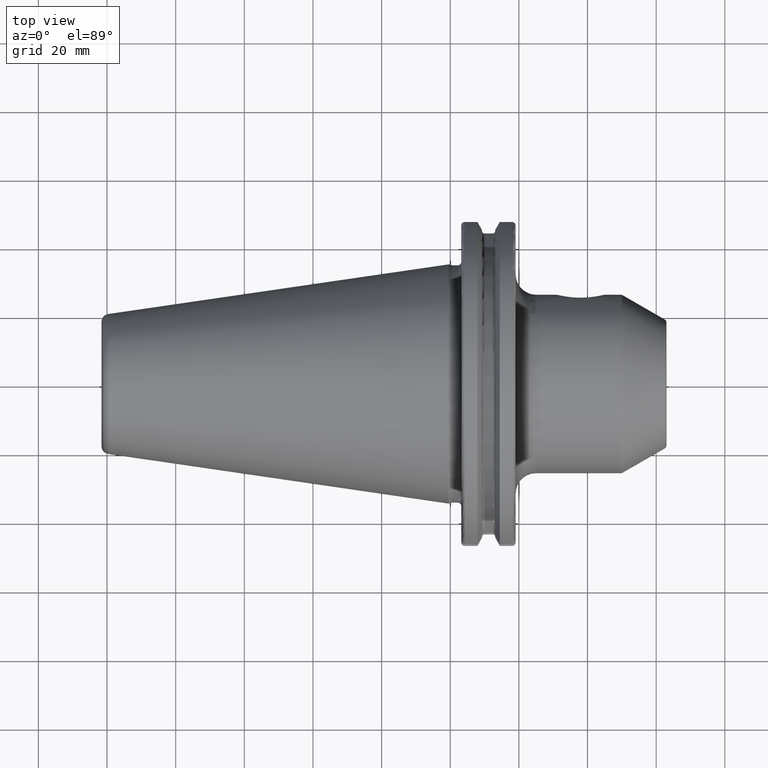
[diagram: clean part render]
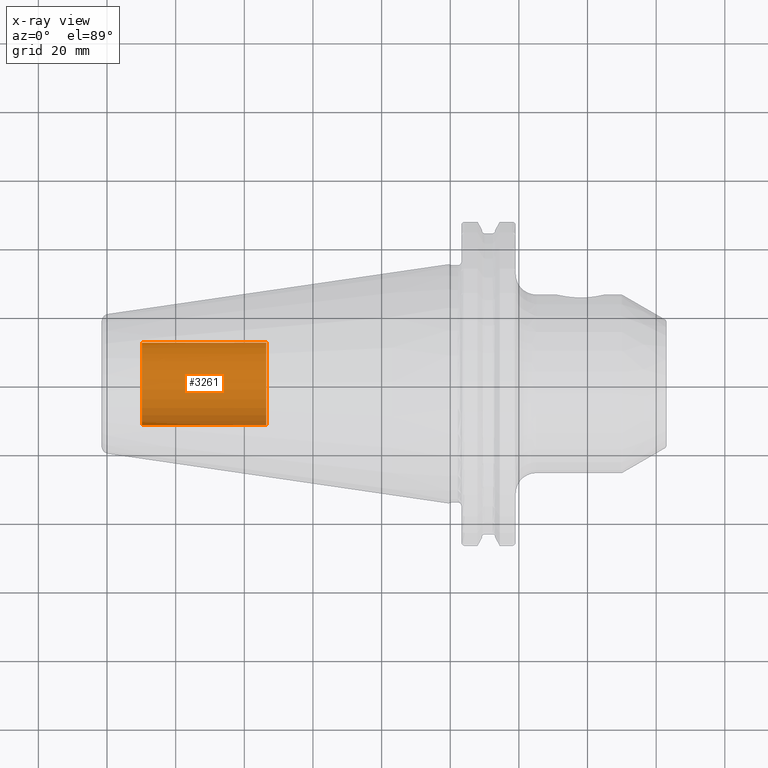
[diagram: x-ray — body ghosted, one internal face saturated and labeled with its STEP entity id]
A machine part, top view, then the same camera in x-ray: the body is ghosted and one INTERNAL B-rep face — a face not visible from any outside direction — is saturated and labeled: STEP entity #3261.
In plain terms, the highlighted cylindrical surface (partial cylindrical patch) has radius 12.0032 mm, axis along (1, 0, 0).
Its self-contained STEP definition (entity closure, byte-faithful):
#3196=CARTESIAN_POINT('',(-8.985E1,0.E0,0.E0));
#3197=DIRECTION('',(-1.E0,0.E0,0.E0));
#3198=DIRECTION('',(0.E0,1.E0,0.E0));
#3199=AXIS2_PLACEMENT_3D('',#3196,#3197,#3198);
#3201=DIRECTION('',(1.E0,0.E0,0.E0));
#3202=VECTOR('',#3201,3.625E1);
#3203=CARTESIAN_POINT('',(-8.985E1,-1.200325E1,0.E0));
#3204=LINE('',#3203,#3202);
#3210=DIRECTION('',(1.E0,0.E0,0.E0));
#3211=VECTOR('',#3210,3.625E1);
#3212=CARTESIAN_POINT('',(-8.985E1,1.200325E1,0.E0));
#3213=LINE('',#3212,#3211);
#3219=CARTESIAN_POINT('',(-5.36E1,0.E0,0.E0));
#3220=DIRECTION('',(1.E0,0.E0,0.E0));
#3221=DIRECTION('',(0.E0,-1.E0,0.E0));
#3222=AXIS2_PLACEMENT_3D('',#3219,#3220,#3221);
#3234=CARTESIAN_POINT('',(-8.985E1,1.200325E1,0.E0));
#3235=CARTESIAN_POINT('',(-8.985E1,-1.200325E1,0.E0));
#3236=VERTEX_POINT('',#3234);
#3237=VERTEX_POINT('',#3235);
#3238=CARTESIAN_POINT('',(-5.36E1,1.200325E1,0.E0));
#3239=CARTESIAN_POINT('',(-5.36E1,-1.200325E1,0.E0));
#3240=VERTEX_POINT('',#3238);
#3241=VERTEX_POINT('',#3239);
#3246=CARTESIAN_POINT('',(-8.985E1,0.E0,0.E0));
#3247=DIRECTION('',(1.E0,0.E0,0.E0));
#3248=DIRECTION('',(0.E0,1.E0,0.E0));
#3249=AXIS2_PLACEMENT_3D('',#3246,#3247,#3248);
#3250=CYLINDRICAL_SURFACE('',#3249,1.200325E1);
#3252=ORIENTED_EDGE('',*,*,#3251,.T.);
#3254=ORIENTED_EDGE('',*,*,#3253,.T.);
#3256=ORIENTED_EDGE('',*,*,#3255,.T.);
#3258=ORIENTED_EDGE('',*,*,#3257,.F.);
#3259=EDGE_LOOP('',(#3252,#3254,#3256,#3258));
#3260=FACE_OUTER_BOUND('',#3259,.F.);
#3261=ADVANCED_FACE('',(#3260),#3250,.T.);
#3200=CIRCLE('',#3199,1.200325E1);
#3223=CIRCLE('',#3222,1.200325E1);
#3251=EDGE_CURVE('',#3236,#3237,#3200,.T.);
#3253=EDGE_CURVE('',#3237,#3241,#3204,.T.);
#3255=EDGE_CURVE('',#3241,#3240,#3223,.T.);
#3257=EDGE_CURVE('',#3236,#3240,#3213,.T.);